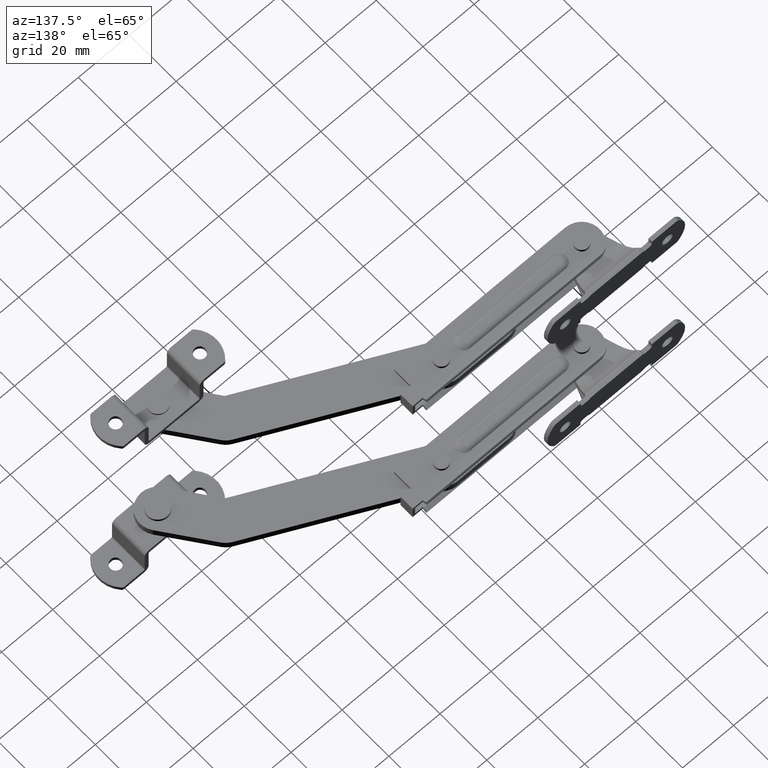
[diagram: clean part render]
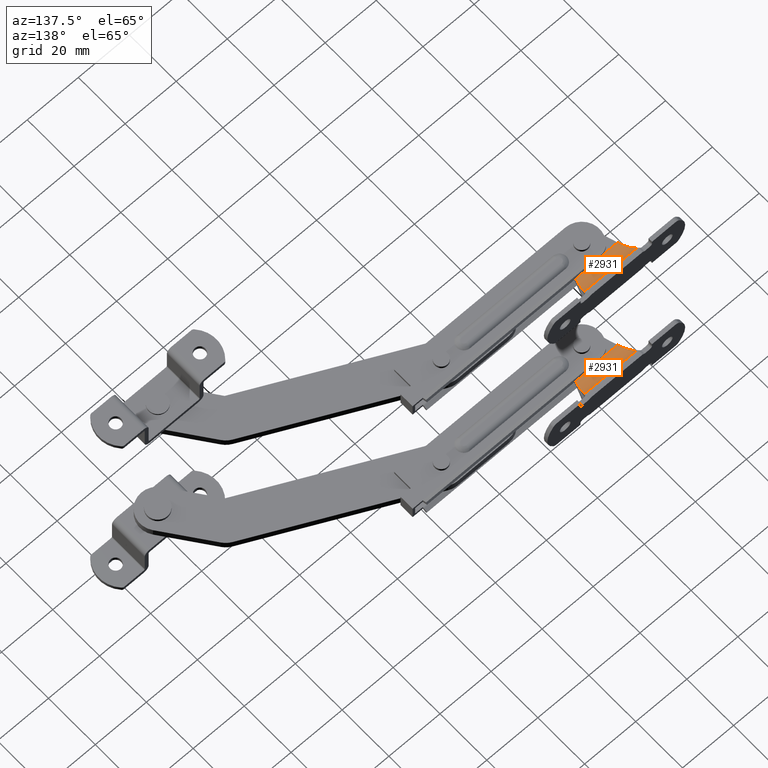
[diagram: same view with one multi-face feature highlighted, each face labeled with its STEP entity id]
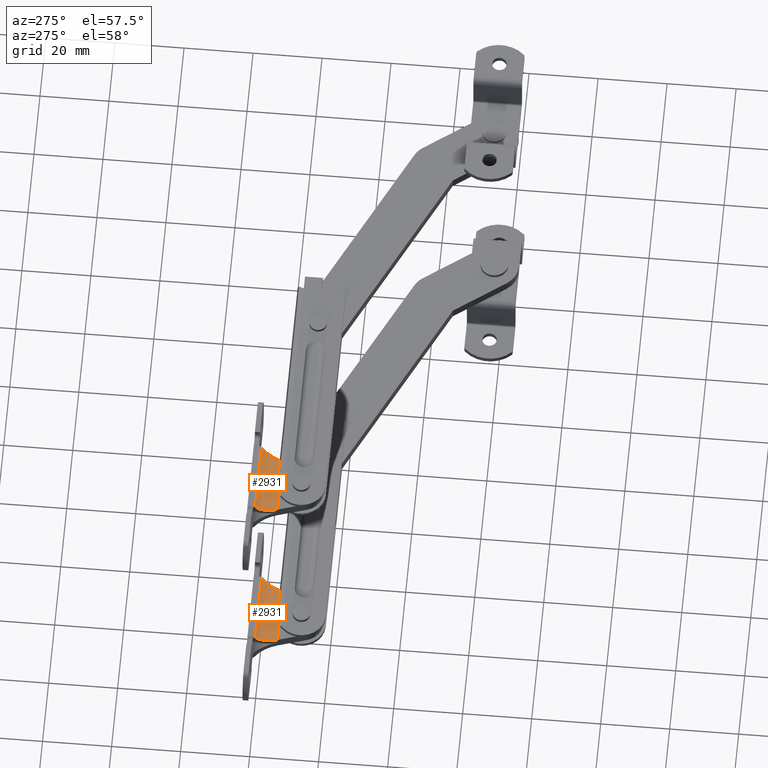
[diagram: same view with one multi-face feature highlighted, each face labeled with its STEP entity id]
A machine part, auxiliary view. The highlighted faces form ONE feature: a constant-radius fillet chain: 2 tangent blend faces with common blend radius 7.2812 mm. The faces share edges in the B-rep.
A second angle (auxiliary view) of the same feature is appended — it is thin or edge-on in the first view.
Their STEP definitions:
[1] entity #2931 (Cylinder):
#77=B_SPLINE_CURVE_WITH_KNOTS('',3,(#4644,#4645,#4646,#4647),
 .UNSPECIFIED.,.F.,.F.,(4,4),(0.122286941187651,0.148189593029539),
 .UNSPECIFIED.);
#84=B_SPLINE_CURVE_WITH_KNOTS('',3,(#4743,#4744,#4745,#4746),
 .UNSPECIFIED.,.F.,.F.,(4,4),(0.,0.0705059462733823),.UNSPECIFIED.);
#114=ELLIPSE('',#3171,7.62780437236041,7.28125);
#117=ELLIPSE('',#3219,7.62780437236041,7.28125);
#189=LINE('',#4674,#400);
#252=LINE('',#5158,#463);
#400=VECTOR('',#3691,19.6771243444677);
#463=VECTOR('',#3910,16.6294828017501);
#649=CYLINDRICAL_SURFACE('',#3218,7.28125);
#787=FACE_OUTER_BOUND('',#981,.T.);
#981=EDGE_LOOP('',(#2400,#2401,#2402,#2403,#2404,#2405));
#1320=VERTEX_POINT('',#4638);
#1321=VERTEX_POINT('',#4643);
#1326=VERTEX_POINT('',#4670);
#1332=VERTEX_POINT('',#4742);
#1362=VERTEX_POINT('',#4976);
#1426=VERTEX_POINT('',#5156);
#1640=EDGE_CURVE('',#1320,#1321,#77,.T.);
#1649=EDGE_CURVE('',#1321,#1326,#189,.T.);
#1655=EDGE_CURVE('',#1326,#1332,#84,.T.);
#1700=EDGE_CURVE('',#1362,#1332,#114,.T.);
#1785=EDGE_CURVE('',#1426,#1320,#117,.T.);
#1786=EDGE_CURVE('',#1426,#1362,#252,.T.);
#2400=ORIENTED_EDGE('',*,*,#1640,.F.);
#2401=ORIENTED_EDGE('',*,*,#1785,.F.);
#2402=ORIENTED_EDGE('',*,*,#1786,.T.);
#2403=ORIENTED_EDGE('',*,*,#1700,.T.);
#2404=ORIENTED_EDGE('',*,*,#1655,.F.);
#2405=ORIENTED_EDGE('',*,*,#1649,.F.);
#2931=ADVANCED_FACE('',(#787),#649,.F.);
#3171=AXIS2_PLACEMENT_3D('',#4977,#3762,#3763);
#3218=AXIS2_PLACEMENT_3D('',#5155,#3906,#3907);
#3219=AXIS2_PLACEMENT_3D('',#5157,#3908,#3909);
#3691=DIRECTION('',(1.,1.3683204459747E-17,0.));
#3762=DIRECTION('center_axis',(0.95456695590986,-9.91364566931098E-18,0.297996521263224));
#3763=DIRECTION('ref_axis',(-0.297996521263224,-1.49627035809078E-16,0.95456695590986));
#3906=DIRECTION('center_axis',(-1.,-1.3683204459747E-17,0.));
#3907=DIRECTION('ref_axis',(1.3683204459747E-17,-1.,-1.52476981922768E-16));
#3908=DIRECTION('center_axis',(0.95456695590986,3.60367153257767E-17,-0.297996521263224));
#3909=DIRECTION('ref_axis',(0.297996521263224,-1.41471941151602E-16,0.95456695590986));
#3910=DIRECTION('',(1.,1.3683204459747E-17,0.));
#4638=CARTESIAN_POINT('',(-10.235084749683,4.88550118382665,2.34859831201527));
#4643=CARTESIAN_POINT('',(-10.0431497482521,5.01698113207547,2.2672733533008));
#4644=CARTESIAN_POINT('Ctrl Pts',(-10.235084749914,4.88550118418304,2.34859831204621));
#4645=CARTESIAN_POINT('Ctrl Pts',(-10.167425256387,4.92628768713765,2.322767781275));
#4646=CARTESIAN_POINT('Ctrl Pts',(-10.1032856122252,4.97035049303015,2.29543602957391));
#4647=CARTESIAN_POINT('Ctrl Pts',(-10.0431497482521,5.01698113207547,2.2672733533008));
#4670=CARTESIAN_POINT('',(9.63397459621556,5.01698113207547,2.2672733533008));
#4674=CARTESIAN_POINT('',(-6.86483786008814E-17,5.01698113207547,2.2672733533008));
#4742=CARTESIAN_POINT('',(10.1989574895196,4.70850912659825,2.46432411898856));
#4743=CARTESIAN_POINT('Ctrl Pts',(9.63397459644571,5.01698113189701,2.26727335340859));
#4744=CARTESIAN_POINT('Ctrl Pts',(9.79766192933031,4.89005446236256,2.34393099263328));
#4745=CARTESIAN_POINT('Ctrl Pts',(9.9885528927139,4.78437570274006,2.41313190027799));
#4746=CARTESIAN_POINT('Ctrl Pts',(10.198974922376,4.70854158707331,2.46430054023889));
#4976=CARTESIAN_POINT('',(8.31474140087503,1.5,8.5));
#4977=CARTESIAN_POINT('Origin',(8.31474140087503,8.78125,8.5));
#5155=CARTESIAN_POINT('Origin',(-1.20155639162153E-16,8.78125,8.5));
#5156=CARTESIAN_POINT('',(-8.31474140087503,1.5,8.5));
#5157=CARTESIAN_POINT('Origin',(-8.31474140087503,8.78125,8.5));
#5158=CARTESIAN_POINT('',(-2.05248066896204E-17,1.5,8.5));
[2] entity #2931 (Cylinder):
#77=B_SPLINE_CURVE_WITH_KNOTS('',3,(#4644,#4645,#4646,#4647),
 .UNSPECIFIED.,.F.,.F.,(4,4),(0.122286941187651,0.148189593029539),
 .UNSPECIFIED.);
#84=B_SPLINE_CURVE_WITH_KNOTS('',3,(#4743,#4744,#4745,#4746),
 .UNSPECIFIED.,.F.,.F.,(4,4),(0.,0.0705059462733823),.UNSPECIFIED.);
#114=ELLIPSE('',#3171,7.62780437236041,7.28125);
#117=ELLIPSE('',#3219,7.62780437236041,7.28125);
#189=LINE('',#4674,#400);
#252=LINE('',#5158,#463);
#400=VECTOR('',#3691,19.6771243444677);
#463=VECTOR('',#3910,16.6294828017501);
#649=CYLINDRICAL_SURFACE('',#3218,7.28125);
#787=FACE_OUTER_BOUND('',#981,.T.);
#981=EDGE_LOOP('',(#2400,#2401,#2402,#2403,#2404,#2405));
#1320=VERTEX_POINT('',#4638);
#1321=VERTEX_POINT('',#4643);
#1326=VERTEX_POINT('',#4670);
#1332=VERTEX_POINT('',#4742);
#1362=VERTEX_POINT('',#4976);
#1426=VERTEX_POINT('',#5156);
#1640=EDGE_CURVE('',#1320,#1321,#77,.T.);
#1649=EDGE_CURVE('',#1321,#1326,#189,.T.);
#1655=EDGE_CURVE('',#1326,#1332,#84,.T.);
#1700=EDGE_CURVE('',#1362,#1332,#114,.T.);
#1785=EDGE_CURVE('',#1426,#1320,#117,.T.);
#1786=EDGE_CURVE('',#1426,#1362,#252,.T.);
#2400=ORIENTED_EDGE('',*,*,#1640,.F.);
#2401=ORIENTED_EDGE('',*,*,#1785,.F.);
#2402=ORIENTED_EDGE('',*,*,#1786,.T.);
#2403=ORIENTED_EDGE('',*,*,#1700,.T.);
#2404=ORIENTED_EDGE('',*,*,#1655,.F.);
#2405=ORIENTED_EDGE('',*,*,#1649,.F.);
#2931=ADVANCED_FACE('',(#787),#649,.F.);
#3171=AXIS2_PLACEMENT_3D('',#4977,#3762,#3763);
#3218=AXIS2_PLACEMENT_3D('',#5155,#3906,#3907);
#3219=AXIS2_PLACEMENT_3D('',#5157,#3908,#3909);
#3691=DIRECTION('',(1.,1.3683204459747E-17,0.));
#3762=DIRECTION('center_axis',(0.95456695590986,-9.91364566931098E-18,0.297996521263224));
#3763=DIRECTION('ref_axis',(-0.297996521263224,-1.49627035809078E-16,0.95456695590986));
#3906=DIRECTION('center_axis',(-1.,-1.3683204459747E-17,0.));
#3907=DIRECTION('ref_axis',(1.3683204459747E-17,-1.,-1.52476981922768E-16));
#3908=DIRECTION('center_axis',(0.95456695590986,3.60367153257767E-17,-0.297996521263224));
#3909=DIRECTION('ref_axis',(0.297996521263224,-1.41471941151602E-16,0.95456695590986));
#3910=DIRECTION('',(1.,1.3683204459747E-17,0.));
#4638=CARTESIAN_POINT('',(-10.235084749683,4.88550118382665,2.34859831201527));
#4643=CARTESIAN_POINT('',(-10.0431497482521,5.01698113207547,2.2672733533008));
#4644=CARTESIAN_POINT('Ctrl Pts',(-10.235084749914,4.88550118418304,2.34859831204621));
#4645=CARTESIAN_POINT('Ctrl Pts',(-10.167425256387,4.92628768713765,2.322767781275));
#4646=CARTESIAN_POINT('Ctrl Pts',(-10.1032856122252,4.97035049303015,2.29543602957391));
#4647=CARTESIAN_POINT('Ctrl Pts',(-10.0431497482521,5.01698113207547,2.2672733533008));
#4670=CARTESIAN_POINT('',(9.63397459621556,5.01698113207547,2.2672733533008));
#4674=CARTESIAN_POINT('',(-6.86483786008814E-17,5.01698113207547,2.2672733533008));
#4742=CARTESIAN_POINT('',(10.1989574895196,4.70850912659825,2.46432411898856));
#4743=CARTESIAN_POINT('Ctrl Pts',(9.63397459644571,5.01698113189701,2.26727335340859));
#4744=CARTESIAN_POINT('Ctrl Pts',(9.79766192933031,4.89005446236256,2.34393099263328));
#4745=CARTESIAN_POINT('Ctrl Pts',(9.9885528927139,4.78437570274006,2.41313190027799));
#4746=CARTESIAN_POINT('Ctrl Pts',(10.198974922376,4.70854158707331,2.46430054023889));
#4976=CARTESIAN_POINT('',(8.31474140087503,1.5,8.5));
#4977=CARTESIAN_POINT('Origin',(8.31474140087503,8.78125,8.5));
#5155=CARTESIAN_POINT('Origin',(-1.20155639162153E-16,8.78125,8.5));
#5156=CARTESIAN_POINT('',(-8.31474140087503,1.5,8.5));
#5157=CARTESIAN_POINT('Origin',(-8.31474140087503,8.78125,8.5));
#5158=CARTESIAN_POINT('',(-2.05248066896204E-17,1.5,8.5));